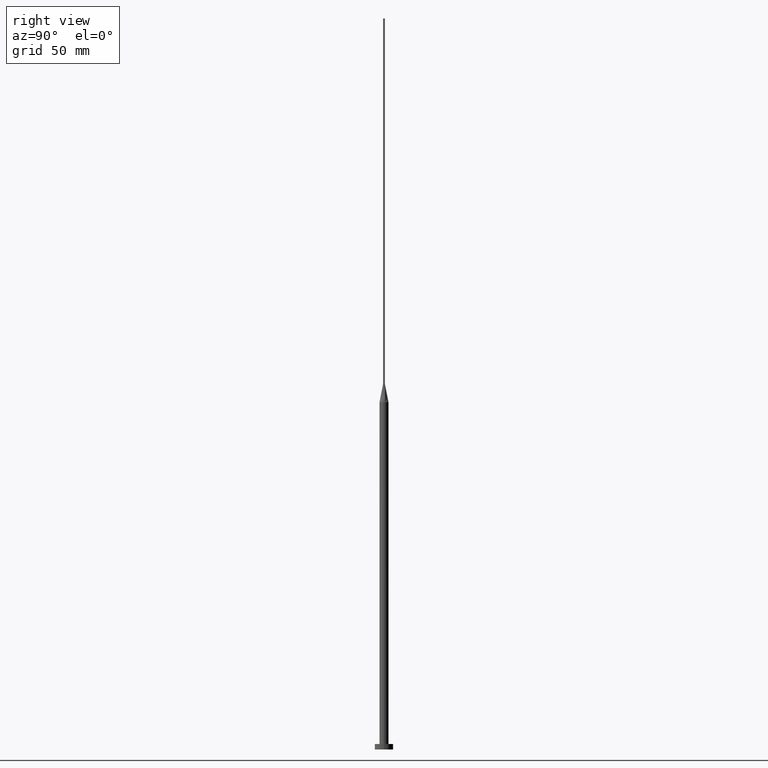
[diagram: clean part render]
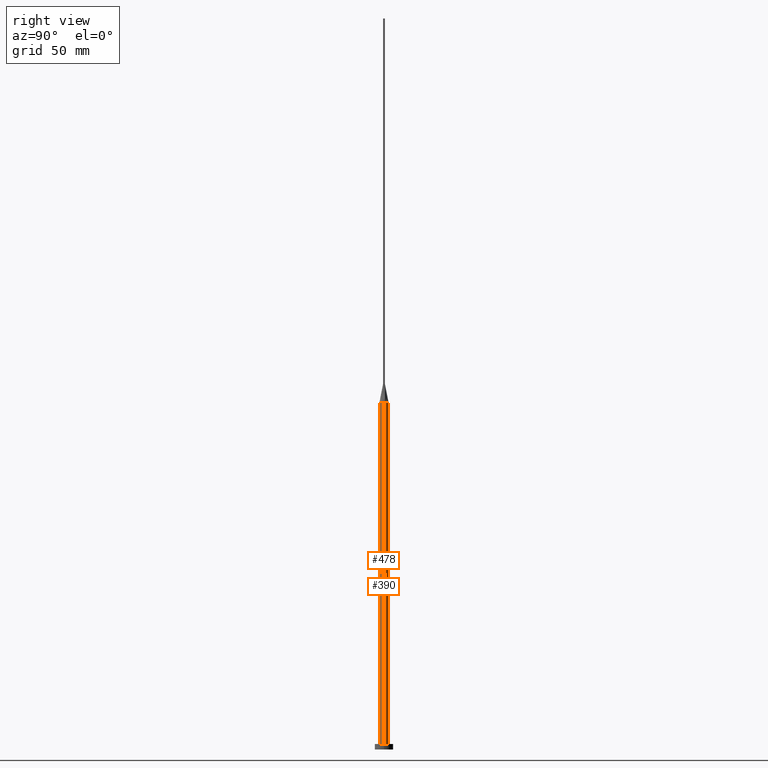
[diagram: same view with one multi-face feature highlighted, each face labeled with its STEP entity id]
A machine part, right view. The highlighted faces form ONE feature: a constant-radius fillet chain: 2 tangent blend faces with common blend radius 2.5 mm. The faces share edges in the B-rep.
Their STEP definitions:
[1] entity #478 (Cylinder):
#46 = ORIENTED_EDGE ( 'NONE', *, *, #400, .F. ) ;
#65 = CARTESIAN_POINT ( 'NONE',  ( 0.000000000000000000, 0.000000000000000000, 190.0000000000000000 ) ) ;
#70 = CARTESIAN_POINT ( 'NONE',  ( 0.000000000000000000, 0.000000000000000000, 190.0000000000000000 ) ) ;
#75 = CARTESIAN_POINT ( 'NONE',  ( -2.500000000000000000, 0.000000000000000000, 3.000000000000000000 ) ) ;
#76 = EDGE_CURVE ( 'NONE', #348, #122, #406, .T. ) ;
#88 = ORIENTED_EDGE ( 'NONE', *, *, #76, .F. ) ;
#109 = AXIS2_PLACEMENT_3D ( 'NONE', #65, #512, #116 ) ;
#116 = DIRECTION ( 'NONE',  ( -1.000000000000000000, 0.000000000000000000, 0.000000000000000000 ) ) ;
#122 = VERTEX_POINT ( 'NONE', #522 ) ;
#126 = ORIENTED_EDGE ( 'NONE', *, *, #571, .T. ) ;
#130 = CARTESIAN_POINT ( 'NONE',  ( 0.000000000000000000, 0.000000000000000000, 3.000000000000000000 ) ) ;
#134 = CARTESIAN_POINT ( 'NONE',  ( 2.500000000000000000, 3.061616997868383141E-16, 190.0000000000000000 ) ) ;
#151 = DIRECTION ( 'NONE',  ( 0.000000000000000000, 0.000000000000000000, 1.000000000000000000 ) ) ;
#152 = DIRECTION ( 'NONE',  ( 0.000000000000000000, 0.000000000000000000, 1.000000000000000000 ) ) ;
#157 = DIRECTION ( 'NONE',  ( 0.000000000000000000, 0.000000000000000000, 1.000000000000000000 ) ) ;
#165 = CIRCLE ( 'NONE', #293, 2.500000000000000000 ) ;
#168 = CARTESIAN_POINT ( 'NONE',  ( -2.440688158044365785, -0.5423755258804862089, 190.0000000000000000 ) ) ;
#171 = DIRECTION ( 'NONE',  ( -0.000000000000000000, -0.000000000000000000, -1.000000000000000000 ) ) ;
#182 = EDGE_CURVE ( 'NONE', #122, #465, #530, .T. ) ;
#197 = DIRECTION ( 'NONE',  ( 1.000000000000000000, 0.000000000000000000, 0.000000000000000000 ) ) ;
#205 = CARTESIAN_POINT ( 'NONE',  ( 0.000000000000000000, 0.000000000000000000, 190.0000000000000000 ) ) ;
#238 = CARTESIAN_POINT ( 'NONE',  ( 2.440706242928429415, -0.5423794613208688942, 190.0000000000000000 ) ) ;
#240 = VERTEX_POINT ( 'NONE', #75 ) ;
#241 = AXIS2_PLACEMENT_3D ( 'NONE', #548, #151, #506 ) ;
#247 = CYLINDRICAL_SURFACE ( 'NONE', #109, 2.500000000000000000 ) ;
#282 = ORIENTED_EDGE ( 'NONE', *, *, #563, .T. ) ;
#293 = AXIS2_PLACEMENT_3D ( 'NONE', #130, #307, #349 ) ;
#303 = DIRECTION ( 'NONE',  ( -0.000000000000000000, -0.000000000000000000, -1.000000000000000000 ) ) ;
#307 = DIRECTION ( 'NONE',  ( 0.000000000000000000, 0.000000000000000000, 1.000000000000000000 ) ) ;
#313 = CARTESIAN_POINT ( 'NONE',  ( -2.499645589935823420, -1.700711608024726496E-15, 190.0000000000000000 ) ) ;
#317 = ORIENTED_EDGE ( 'NONE', *, *, #542, .F. ) ;
#338 = FACE_OUTER_BOUND ( 'NONE', #352, .T. ) ;
#348 = VERTEX_POINT ( 'NONE', #238 ) ;
#349 = DIRECTION ( 'NONE',  ( 1.000000000000000000, 0.000000000000000000, 0.000000000000000000 ) ) ;
#350 = VECTOR ( 'NONE', #171, 1000.000000000000000 ) ;
#352 = EDGE_LOOP ( 'NONE', ( #444, #88, #46, #317, #126, #282 ) ) ;
#369 = VERTEX_POINT ( 'NONE', #313 ) ;
#400 = EDGE_CURVE ( 'NONE', #559, #348, #408, .T. ) ;
#401 = LINE ( 'NONE', #572, #350 ) ;
#406 = CIRCLE ( 'NONE', #533, 2.500000000000000000 ) ;
#408 = CIRCLE ( 'NONE', #475, 2.500000000000000000 ) ;
#444 = ORIENTED_EDGE ( 'NONE', *, *, #182, .F. ) ;
#447 = CIRCLE ( 'NONE', #241, 2.500000000000000000 ) ;
#464 = CARTESIAN_POINT ( 'NONE',  ( 2.500000000000000000, 3.061616997868383141E-16, 3.000000000000000000 ) ) ;
#465 = VERTEX_POINT ( 'NONE', #464 ) ;
#475 = AXIS2_PLACEMENT_3D ( 'NONE', #205, #157, #197 ) ;
#477 = DIRECTION ( 'NONE',  ( 1.000000000000000000, -4.440892098500626162E-15, 0.000000000000000000 ) ) ;
#478 = ADVANCED_FACE ( 'NONE', ( #338 ), #247, .T. ) ;
#500 = VECTOR ( 'NONE', #303, 1000.000000000000000 ) ;
#506 = DIRECTION ( 'NONE',  ( 1.000000000000000000, 0.000000000000000000, 0.000000000000000000 ) ) ;
#512 = DIRECTION ( 'NONE',  ( -0.000000000000000000, -0.000000000000000000, -1.000000000000000000 ) ) ;
#522 = CARTESIAN_POINT ( 'NONE',  ( 2.499645589935823420, 5.999196936655281332E-16, 190.0000000000000000 ) ) ;
#530 = LINE ( 'NONE', #134, #500 ) ;
#533 = AXIS2_PLACEMENT_3D ( 'NONE', #70, #152, #477 ) ;
#542 = EDGE_CURVE ( 'NONE', #369, #559, #447, .T. ) ;
#548 = CARTESIAN_POINT ( 'NONE',  ( 0.000000000000000000, 0.000000000000000000, 190.0000000000000000 ) ) ;
#559 = VERTEX_POINT ( 'NONE', #168 ) ;
#563 = EDGE_CURVE ( 'NONE', #240, #465, #165, .T. ) ;
#571 = EDGE_CURVE ( 'NONE', #369, #240, #401, .T. ) ;
#572 = CARTESIAN_POINT ( 'NONE',  ( -2.500000000000000000, 0.000000000000000000, 190.0000000000000000 ) ) ;
[2] entity #390 (Cylinder):
#16 = CARTESIAN_POINT ( 'NONE',  ( 0.000000000000000000, 0.000000000000000000, 3.000000000000000000 ) ) ;
#24 = CARTESIAN_POINT ( 'NONE',  ( 0.000000000000000000, 0.000000000000000000, 190.0000000000000000 ) ) ;
#31 = CARTESIAN_POINT ( 'NONE',  ( -1.519400572660313253, 2.006070808634367264, 190.0000000000000284 ) ) ;
#33 = CIRCLE ( 'NONE', #90, 2.500000000000000000 ) ;
#45 = CARTESIAN_POINT ( 'NONE',  ( 1.935644909179608186, 1.608159499248285051, 189.9999999999999432 ) ) ;
#62 = CYLINDRICAL_SURFACE ( 'NONE', #575, 2.500000000000000000 ) ;
#63 = CIRCLE ( 'NONE', #387, 2.500000000000000000 ) ;
#75 = CARTESIAN_POINT ( 'NONE',  ( -2.500000000000000000, 0.000000000000000000, 3.000000000000000000 ) ) ;
#90 = AXIS2_PLACEMENT_3D ( 'NONE', #16, #200, #380 ) ;
#111 = DIRECTION ( 'NONE',  ( 1.000000000000000000, 0.000000000000000000, 0.000000000000000000 ) ) ;
#113 = FACE_OUTER_BOUND ( 'NONE', #460, .T. ) ;
#114 = EDGE_CURVE ( 'NONE', #462, #405, #336, .T. ) ;
#122 = VERTEX_POINT ( 'NONE', #522 ) ;
#124 = CARTESIAN_POINT ( 'NONE',  ( -1.260416918790968843, 2.182794756967428196, 190.0000000000000284 ) ) ;
#134 = CARTESIAN_POINT ( 'NONE',  ( 2.500000000000000000, 3.061616997868383141E-16, 190.0000000000000000 ) ) ;
#154 = CARTESIAN_POINT ( 'NONE',  ( -2.440694335308545071, 0.5423767520433731004, 190.0000000000000000 ) ) ;
#158 = CARTESIAN_POINT ( 'NONE',  ( 2.396350003401058526, 0.7408555563113465858, 190.0000000000000568 ) ) ;
#171 = DIRECTION ( 'NONE',  ( -0.000000000000000000, -0.000000000000000000, -1.000000000000000000 ) ) ;
#173 = AXIS2_PLACEMENT_3D ( 'NONE', #472, #424, #291 ) ;
#178 = CARTESIAN_POINT ( 'NONE',  ( -2.093723281432891437, 1.388001797188529451, 190.0000000000000284 ) ) ;
#182 = EDGE_CURVE ( 'NONE', #122, #465, #530, .T. ) ;
#200 = DIRECTION ( 'NONE',  ( 0.000000000000000000, 0.000000000000000000, 1.000000000000000000 ) ) ;
#222 = CARTESIAN_POINT ( 'NONE',  ( 1.260416918790968843, 2.182794756967427752, 190.0000000000000000 ) ) ;
#235 = ORIENTED_EDGE ( 'NONE', *, *, #487, .F. ) ;
#240 = VERTEX_POINT ( 'NONE', #75 ) ;
#250 = DIRECTION ( 'NONE',  ( 0.000000000000000000, 0.000000000000000000, 1.000000000000000000 ) ) ;
#252 = CARTESIAN_POINT ( 'NONE',  ( 0.000000000000000000, 0.000000000000000000, 190.0000000000000000 ) ) ;
#257 = CARTESIAN_POINT ( 'NONE',  ( -2.323660390030918510, 0.9543733860570832173, 190.0000000000000284 ) ) ;
#258 = ORIENTED_EDGE ( 'NONE', *, *, #518, .T. ) ;
#264 = CARTESIAN_POINT ( 'NONE',  ( 0.3342381693191150416, 2.499999999999999556, 190.0000000000000000 ) ) ;
#267 = CARTESIAN_POINT ( 'NONE',  ( -2.396350003401058082, 0.7408555563113466969, 190.0000000000000284 ) ) ;
#271 = ORIENTED_EDGE ( 'NONE', *, *, #114, .F. ) ;
#283 = DIRECTION ( 'NONE',  ( -1.000000000000000000, 0.000000000000000000, 0.000000000000000000 ) ) ;
#291 = DIRECTION ( 'NONE',  ( 1.000000000000000000, 0.000000000000000000, 0.000000000000000000 ) ) ;
#292 = CARTESIAN_POINT ( 'NONE',  ( 2.093723281432890104, 1.388001797188529007, 190.0000000000000000 ) ) ;
#303 = DIRECTION ( 'NONE',  ( -0.000000000000000000, -0.000000000000000000, -1.000000000000000000 ) ) ;
#313 = CARTESIAN_POINT ( 'NONE',  ( -2.499645589935823420, -1.700711608024726496E-15, 190.0000000000000000 ) ) ;
#335 = CARTESIAN_POINT ( 'NONE',  ( 2.323660390030918954, 0.9543733860570833283, 190.0000000000000568 ) ) ;
#336 = B_SPLINE_CURVE_WITH_KNOTS ( 'NONE', 3,
 ( #557, #158, #335, #292, #45, #354, #222, #402, #264, #389, #580, #124, #31, #440, #178, #257, #267, #443 ),
 .UNSPECIFIED., .F., .F.,
 ( 4, 2, 2, 2, 2, 2, 2, 2, 4 ),
 ( 0.000000000000000000, 0.1249999999999999722, 0.2500000000000000000, 0.3750000000000000000, 0.5000000000000001110, 0.6250000000000001110, 0.7500000000000000000, 0.8750000000000000000, 1.000000000000000000 ),
 .UNSPECIFIED. ) ;
#345 = ORIENTED_EDGE ( 'NONE', *, *, #182, .T. ) ;
#350 = VECTOR ( 'NONE', #171, 1000.000000000000000 ) ;
#354 = CARTESIAN_POINT ( 'NONE',  ( 1.519400572660313031, 2.006070808634367708, 190.0000000000000284 ) ) ;
#369 = VERTEX_POINT ( 'NONE', #313 ) ;
#380 = DIRECTION ( 'NONE',  ( 1.000000000000000000, 0.000000000000000000, 0.000000000000000000 ) ) ;
#387 = AXIS2_PLACEMENT_3D ( 'NONE', #24, #250, #111 ) ;
#389 = CARTESIAN_POINT ( 'NONE',  ( -0.3342381693191151526, 2.499999999999999556, 190.0000000000000568 ) ) ;
#390 = ADVANCED_FACE ( 'NONE', ( #113 ), #62, .T. ) ;
#401 = LINE ( 'NONE', #572, #350 ) ;
#402 = CARTESIAN_POINT ( 'NONE',  ( 0.6674771052374470770, 2.430579781493058977, 189.9999999999999432 ) ) ;
#405 = VERTEX_POINT ( 'NONE', #154 ) ;
#411 = ORIENTED_EDGE ( 'NONE', *, *, #431, .F. ) ;
#424 = DIRECTION ( 'NONE',  ( 0.000000000000000000, 0.000000000000000000, 1.000000000000000000 ) ) ;
#429 = CARTESIAN_POINT ( 'NONE',  ( 2.440676307083422980, 0.5423728264510006003, 190.0000000000000000 ) ) ;
#431 = EDGE_CURVE ( 'NONE', #405, #369, #63, .T. ) ;
#440 = CARTESIAN_POINT ( 'NONE',  ( -1.935644909179609297, 1.608159499248285718, 190.0000000000000284 ) ) ;
#441 = ORIENTED_EDGE ( 'NONE', *, *, #571, .F. ) ;
#443 = CARTESIAN_POINT ( 'NONE',  ( -2.440694335308545071, 0.5423767520433731004, 190.0000000000000000 ) ) ;
#460 = EDGE_LOOP ( 'NONE', ( #235, #345, #258, #441, #411, #271 ) ) ;
#462 = VERTEX_POINT ( 'NONE', #429 ) ;
#464 = CARTESIAN_POINT ( 'NONE',  ( 2.500000000000000000, 3.061616997868383141E-16, 3.000000000000000000 ) ) ;
#465 = VERTEX_POINT ( 'NONE', #464 ) ;
#472 = CARTESIAN_POINT ( 'NONE',  ( 0.000000000000000000, 0.000000000000000000, 190.0000000000000000 ) ) ;
#487 = EDGE_CURVE ( 'NONE', #122, #462, #544, .T. ) ;
#500 = VECTOR ( 'NONE', #303, 1000.000000000000000 ) ;
#518 = EDGE_CURVE ( 'NONE', #465, #240, #33, .T. ) ;
#522 = CARTESIAN_POINT ( 'NONE',  ( 2.499645589935823420, 5.999196936655281332E-16, 190.0000000000000000 ) ) ;
#530 = LINE ( 'NONE', #134, #500 ) ;
#544 = CIRCLE ( 'NONE', #173, 2.500000000000000000 ) ;
#551 = DIRECTION ( 'NONE',  ( -0.000000000000000000, -0.000000000000000000, -1.000000000000000000 ) ) ;
#557 = CARTESIAN_POINT ( 'NONE',  ( 2.440676307083422980, 0.5423728264510006003, 190.0000000000000000 ) ) ;
#571 = EDGE_CURVE ( 'NONE', #369, #240, #401, .T. ) ;
#572 = CARTESIAN_POINT ( 'NONE',  ( -2.500000000000000000, 0.000000000000000000, 190.0000000000000000 ) ) ;
#575 = AXIS2_PLACEMENT_3D ( 'NONE', #252, #551, #283 ) ;
#580 = CARTESIAN_POINT ( 'NONE',  ( -0.6674771052374470770, 2.430579781493059421, 190.0000000000000000 ) ) ;